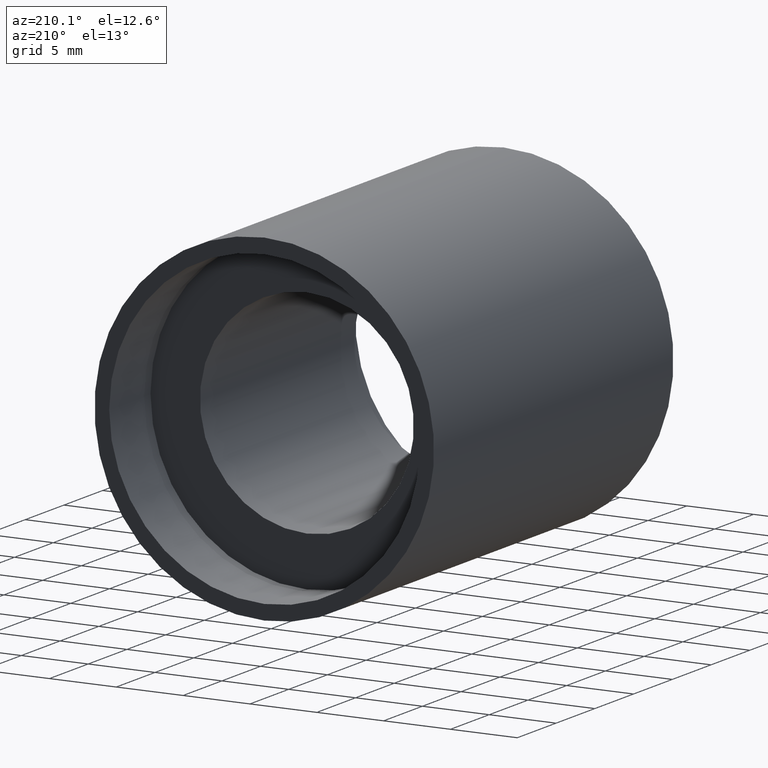
[diagram: clean part render]
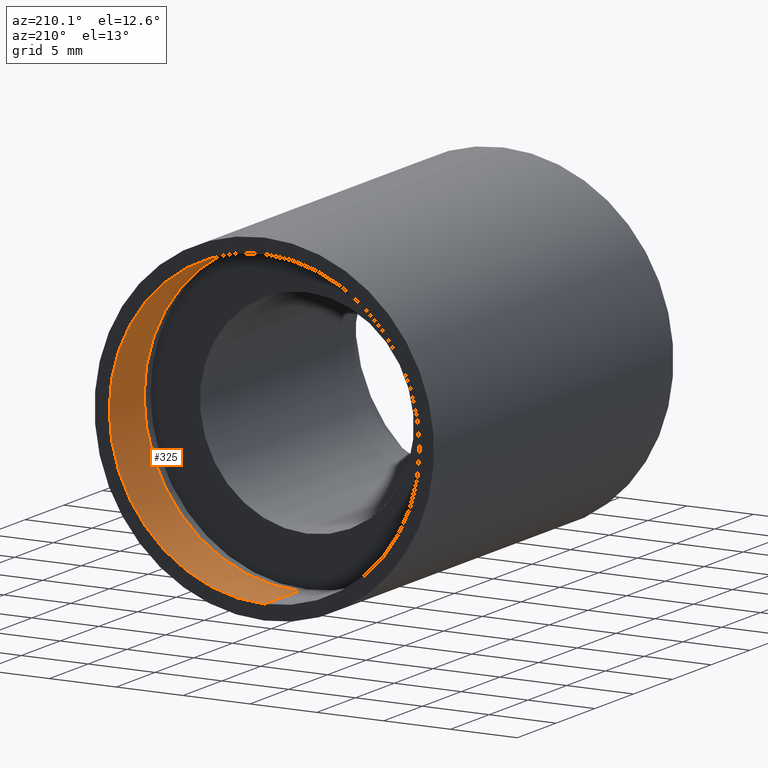
[diagram: same view with one face highlighted and labeled with its STEP entity id]
A machine part, auxiliary view. The second image highlights one B-rep face of the part: STEP entity #325.
In plain terms, the highlighted cylindrical surface (partial cylindrical patch) has radius 11.6 mm, axis along (-0, 1, -0).
Its self-contained STEP definition (entity closure, byte-faithful):
#1 = DIRECTION ( 'NONE',  ( -0.0000000000000000000, 1.000000000000000000, -0.0000000000000000000 ) ) ;
#7 = CARTESIAN_POINT ( 'NONE',  ( 1.420590287010933700E-015, 30.89999999999998400, -11.60000000000003200 ) ) ;
#11 = VERTEX_POINT ( 'NONE', #436 ) ;
#23 = CIRCLE ( 'NONE', #520, 11.60000000000003200 ) ;
#27 = ORIENTED_EDGE ( 'NONE', *, *, #461, .F. ) ;
#44 = EDGE_CURVE ( 'NONE', #446, #193, #23, .T. ) ;
#48 = DIRECTION ( 'NONE',  ( 0.0000000000000000000, 0.0000000000000000000, 1.000000000000000000 ) ) ;
#119 = DIRECTION ( 'NONE',  ( 0.0000000000000000000, 0.0000000000000000000, 1.000000000000000000 ) ) ;
#121 = ORIENTED_EDGE ( 'NONE', *, *, #618, .F. ) ;
#122 = CARTESIAN_POINT ( 'NONE',  ( 1.420590287010933900E-015, 161.3761669434274500, -11.60000000000003300 ) ) ;
#160 = EDGE_LOOP ( 'NONE', ( #27, #121, #465, #621 ) ) ;
#189 = CARTESIAN_POINT ( 'NONE',  ( 0.0000000000000000000, 30.89999999999998400, 0.0000000000000000000 ) ) ;
#193 = VERTEX_POINT ( 'NONE', #7 ) ;
#205 = CIRCLE ( 'NONE', #433, 11.60000000000003300 ) ;
#308 = VECTOR ( 'NONE', #519, 1000.000000000000000 ) ;
#325 = ADVANCED_FACE ( 'NONE', ( #342 ), #612, .F. ) ;
#328 = CARTESIAN_POINT ( 'NONE',  ( 0.0000000000000000000, 26.39999999999997700, 11.60000000000003300 ) ) ;
#339 = DIRECTION ( 'NONE',  ( -0.0000000000000000000, 1.000000000000000000, -0.0000000000000000000 ) ) ;
#340 = CARTESIAN_POINT ( 'NONE',  ( 0.0000000000000000000, 26.39999999999997700, 0.0000000000000000000 ) ) ;
#342 = FACE_OUTER_BOUND ( 'NONE', #160, .T. ) ;
#358 = LINE ( 'NONE', #431, #308 ) ;
#365 = VECTOR ( 'NONE', #462, 1000.000000000000000 ) ;
#380 = LINE ( 'NONE', #122, #365 ) ;
#381 = AXIS2_PLACEMENT_3D ( 'NONE', #458, #599, #119 ) ;
#431 = CARTESIAN_POINT ( 'NONE',  ( 0.0000000000000000000, 161.3761669434274500, 11.60000000000003300 ) ) ;
#432 = DIRECTION ( 'NONE',  ( 0.0000000000000000000, 0.0000000000000000000, 1.000000000000000000 ) ) ;
#433 = AXIS2_PLACEMENT_3D ( 'NONE', #340, #1, #48 ) ;
#436 = CARTESIAN_POINT ( 'NONE',  ( 1.420590287010933900E-015, 26.39999999999997700, -11.60000000000003300 ) ) ;
#446 = VERTEX_POINT ( 'NONE', #568 ) ;
#458 = CARTESIAN_POINT ( 'NONE',  ( 0.0000000000000000000, 161.3761669434274500, 0.0000000000000000000 ) ) ;
#461 = EDGE_CURVE ( 'NONE', #11, #193, #380, .T. ) ;
#462 = DIRECTION ( 'NONE',  ( -0.0000000000000000000, 1.000000000000000000, -0.0000000000000000000 ) ) ;
#465 = ORIENTED_EDGE ( 'NONE', *, *, #480, .T. ) ;
#480 = EDGE_CURVE ( 'NONE', #556, #446, #358, .T. ) ;
#519 = DIRECTION ( 'NONE',  ( -0.0000000000000000000, 1.000000000000000000, -0.0000000000000000000 ) ) ;
#520 = AXIS2_PLACEMENT_3D ( 'NONE', #189, #339, #432 ) ;
#556 = VERTEX_POINT ( 'NONE', #328 ) ;
#568 = CARTESIAN_POINT ( 'NONE',  ( 0.0000000000000000000, 30.89999999999998400, 11.60000000000003200 ) ) ;
#599 = DIRECTION ( 'NONE',  ( -0.0000000000000000000, 1.000000000000000000, -0.0000000000000000000 ) ) ;
#612 = CYLINDRICAL_SURFACE ( 'NONE', #381, 11.60000000000003300 ) ;
#618 = EDGE_CURVE ( 'NONE', #556, #11, #205, .T. ) ;
#621 = ORIENTED_EDGE ( 'NONE', *, *, #44, .T. ) ;